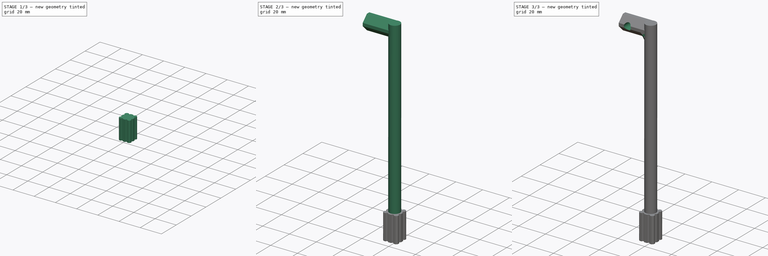
[diagram: build sequence overview — one tinted view per stage of 3, left to right]
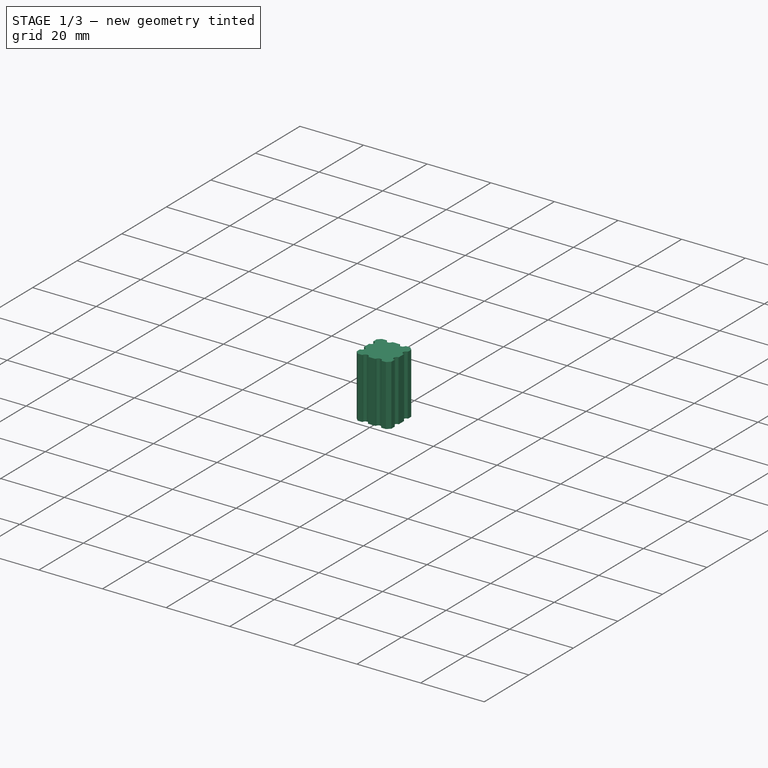
[diagram: stage 1 of 3 — iso view after this stage's code; geometry added in this stage tinted green]
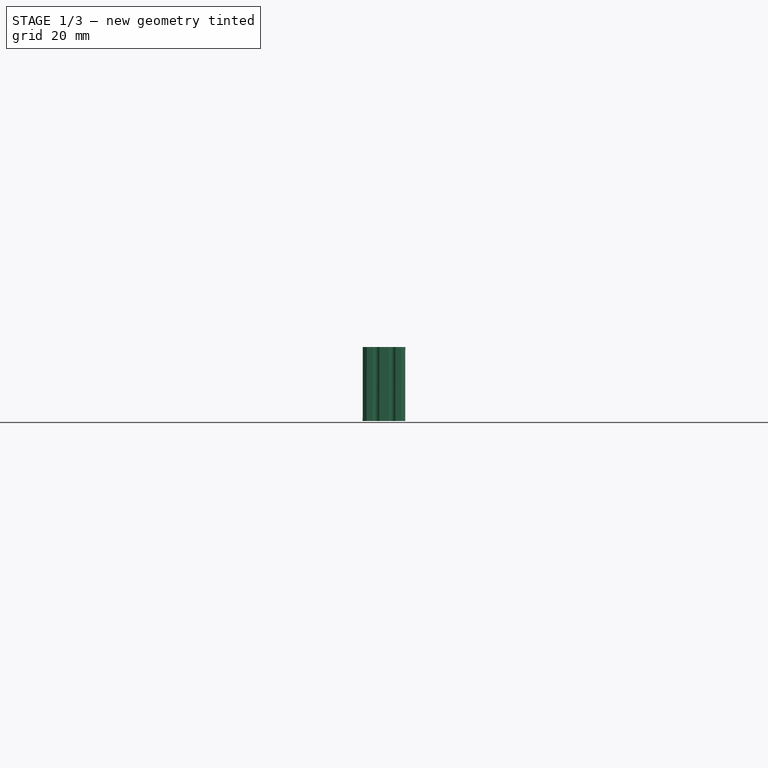
[diagram: stage 1 of 3 — front view after this stage's code; geometry added in this stage tinted green]
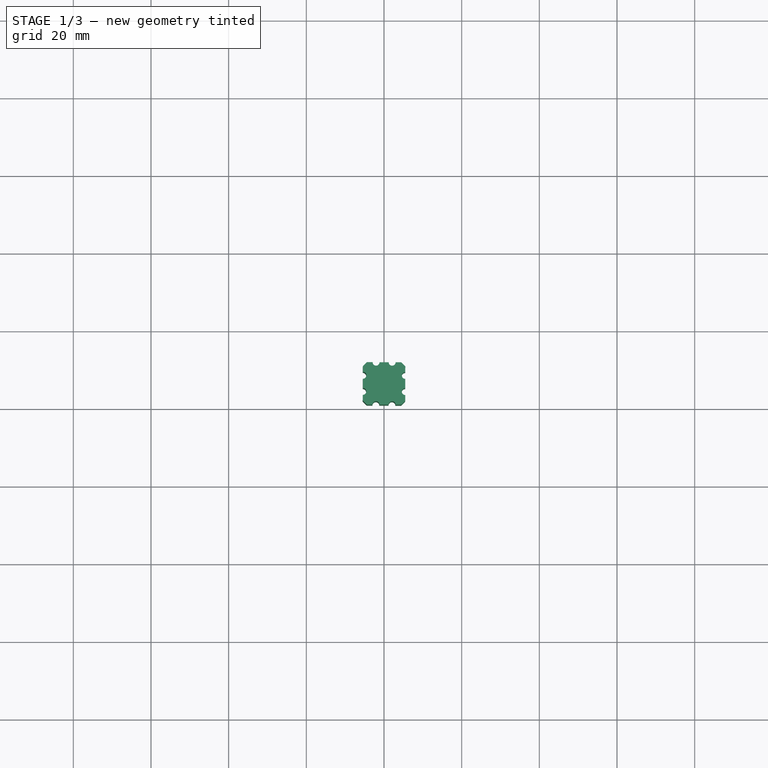
[diagram: stage 1 of 3 — top view after this stage's code; geometry added in this stage tinted green]
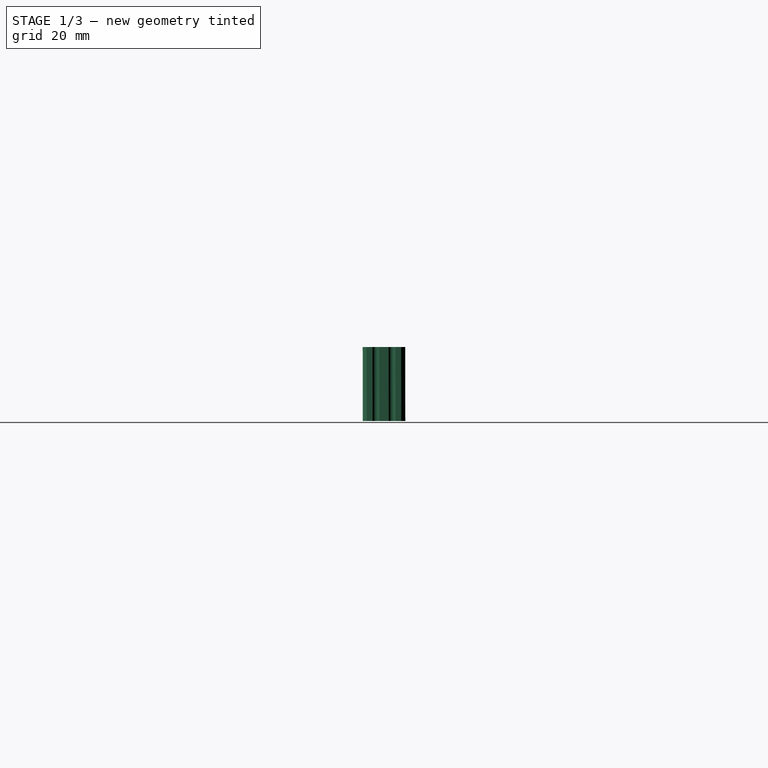
[diagram: stage 1 of 3 — right view after this stage's code; geometry added in this stage tinted green]
FCSTD DOCUMENT  (FreeCAD 0.17R13522 (Git))
Label: Stereotax full mount
License: All rights reserved
LicenseURL: http://en.wikipedia.org/wiki/All_rights_reserved
objects: Drawing::FeatureViewPython×16, Sketcher::SketchObject×9, Drawing::FeatureViewPart×5, PartDesign::Pad×3, PartDesign::Chamfer×3, PartDesign::Pocket×2, Part::Feature×1, Spreadsheet::Sheet×1, PartDesign::Body×1, Drawing::FeaturePage×1
note: 24 computed .brp shape members not serialized (recipe doc carries the construction recipe); baked Part::Feature solids carry a one-line shape summary decoded from their .brp

FEATURE [Sketcher::SketchObject] Sketch031  label="Attachment cube main body"
  MapMode = 5
  Placement = pos=(0,0,0) rot=(0.579113,0.576467,0.576467;2.0944rad)
  expr: Constraints[20] = ss.cubeWidth
  expr: Constraints[43] = ss.offAxis
  expr: Constraints[34] = 0.5" + 0.085000000000000006"
  expr: Constraints[35] = (0.42999999999999999" - 0.10000000000000001" * 2) / 3
  sketch-geometry (16):
    g0: LineSegment [constr] StartX=-14.5449 StartY=18.669 StartZ=0 EndX=-14.5449 EndY=28.575 EndZ=0
    g1: LineSegment [constr] StartX=-14.5449 StartY=28.575 StartZ=0 EndX=-17.0849 EndY=28.575 EndZ=0
    g2: LineSegment [constr] StartX=-17.0849 StartY=28.575 StartZ=0 EndX=-17.0849 EndY=18.669 EndZ=0
    g3: ArcOfCircle [constr] CenterX=-13.2749 CenterY=18.669 CenterZ=0 NormalX=0 NormalY=0 NormalZ=1 AngleXU=0 Radius=1.27 StartAngle=3.14159 EndAngle=4.71239
    g4: ArcOfCircle [constr] CenterX=-13.2749 CenterY=18.669 CenterZ=0 NormalX=0 NormalY=0 NormalZ=1 AngleXU=0 Radius=3.81 StartAngle=3.14159 EndAngle=4.71239
    g5: LineSegment [constr] StartX=-13.2749 StartY=14.859 StartZ=0 EndX=-10.0576 EndY=14.859 EndZ=0
    g6: LineSegment [constr] StartX=-13.2749 StartY=17.399 StartZ=0 EndX=-12.5976 EndY=17.399 EndZ=0
    g7: LineSegment StartX=-19.0322 StartY=37.719 StartZ=0 EndX=-8.11022 EndY=37.719 EndZ=0
    g8: LineSegment StartX=-8.11022 StartY=37.719 StartZ=0 EndX=-8.11022 EndY=18.669 EndZ=0
    g9: LineSegment StartX=-8.11022 StartY=18.669 StartZ=0 EndX=-19.0322 EndY=18.669 EndZ=0
    g10: LineSegment StartX=-19.0322 StartY=18.669 StartZ=0 EndX=-19.0322 EndY=37.719 EndZ=0
    g11: LineSegment [constr] StartX=-11.3276 StartY=28.575 StartZ=0 EndX=-11.3276 EndY=2.159 EndZ=0
    g12: LineSegment [constr] StartX=-10.0576 StartY=14.859 StartZ=0 EndX=-10.0576 EndY=28.575 EndZ=0
    g13: LineSegment [constr] StartX=-10.0576 StartY=28.575 StartZ=0 EndX=-12.5976 EndY=28.575 EndZ=0
    g14: LineSegment [constr] StartX=-12.5976 StartY=28.575 StartZ=0 EndX=-12.5976 EndY=17.399 EndZ=0
    g15: LineSegment [constr] StartX=-13.5712 StartY=37.719 StartZ=0 EndX=-13.5712 EndY=18.669 EndZ=0
  constraints (44):
    c: Coincident(g0,g1)
    c: Coincident(g1,g2)
    c: Vertical(g2)
    c: Vertical(g0)
    c: Horizontal(g1)
    c: Distance(g1) = 2.54
    c: Coincident(g3,g4)
    c: Horizontal(g5)
    c: Horizontal(g6)
    c: Tangent(g2,g4) = -1.5708
    c: Tangent(g3,g6) = -1.5708
    c: Tangent(g0,g3) = 1.5708
    c: Coincident(g7,g8)
    c: Coincident(g8,g9)
    c: Coincident(g9,g10)
    c: Coincident(g10,g7)
    c: Horizontal(g7)
    c: Horizontal(g9)
    c: Vertical(g8)
    c: Vertical(g10)
    c: Distance(g7) = 10.922
    c: Tangent(g4,g5) = -1.5708
    c: DistanceY(g1) = 28.575
    c: Vertical(g11)
    c: DistanceY(g11) = 28.575
    c: DistanceY(g11) = 2.159
    c: Coincident(g12,g13)
    c: Coincident(g13,g14)
    c: Coincident(g6,g14)
    c: Vertical(g12)
    c: Vertical(g14)
    c: Coincident(g5,g12)
    c: Equal(g13,g1)
    c: Symmetric(g13,g12,g11)
    c: DistanceY(g5) = 14.859
    c: DistanceX(g0,g13) = 1.94733
    c: Radius(g4) = 3.81
    c: Distance(g10) = 19.05
    c: DistanceY(g2,g9) = 0
    c: PointOnObject(g15,g7)
    c: PointOnObject(g15,g9)
    c: Symmetric(g7,g7,g15)
    c: Symmetric(g1,g12,g15)
    c: DistanceX(g15) = -13.5712
FEATURE [PartDesign::Pad] Pad003
  Length = 10.922
  Length2 = 100.076
  Midplane = true
  Placement = pos=(0,0,0) rot=(0.579113,0.576467,0.576467;2.0944rad)
  Profile = -> Sketch031
  Type = 0
  expr: Length = ss.cubeWidth
FEATURE [Sketcher::SketchObject] Sketch032  label="Cactus attachment post slots"
  MapMode = 5
  Placement = pos=(5.46097,-0.0166848,-0.00834878) rot=(0.579113,0.576467,0.576467;2.0944rad)
  Support = -> [Pad003]
  expr: Constraints[23] = -0.44600000000000001"
  expr: Constraints[35] = 0.5" + 0.085000000000000006"
  expr: Constraints[36] = (0.42999999999999999" - 0.10000000000000001" * 2) / 3
  expr: Constraints[38] = (0.42999999999999999" - 0.10000000000000001" * 2) / 3
  sketch-geometry (15):
    g0: LineSegment StartX=-14.5457 StartY=18.669 StartZ=0 EndX=-14.5457 EndY=38.1 EndZ=0
    g1: LineSegment StartX=-14.5457 StartY=38.1 StartZ=0 EndX=-17.0857 EndY=38.1 EndZ=0
    g2: LineSegment StartX=-17.0857 StartY=38.1 StartZ=0 EndX=-17.0857 EndY=18.669 EndZ=0
    g3: ArcOfCircle CenterX=-13.2757 CenterY=18.669 CenterZ=0 NormalX=0 NormalY=0 NormalZ=1 AngleXU=0 Radius=1.27 StartAngle=3.14159 EndAngle=4.71239
    g4: ArcOfCircle CenterX=-13.2757 CenterY=18.669 CenterZ=0 NormalX=0 NormalY=0 NormalZ=1 AngleXU=0 Radius=3.81 StartAngle=3.14159 EndAngle=4.71239
    g5: LineSegment StartX=-13.2757 StartY=14.859 StartZ=0 EndX=-10.0584 EndY=14.859 EndZ=0
    g6: LineSegment StartX=-13.2757 StartY=17.399 StartZ=0 EndX=-12.5984 EndY=17.399 EndZ=0
    g7: LineSegment [constr] StartX=-19.0331 StartY=37.719 StartZ=0 EndX=-8.11107 EndY=37.719 EndZ=0
    g8: LineSegment [constr] StartX=-8.11107 StartY=37.719 StartZ=0 EndX=-8.11107 EndY=18.669 EndZ=0
    g9: LineSegment [constr] StartX=-8.11107 StartY=18.669 StartZ=0 EndX=-19.0331 EndY=18.669 EndZ=0
    g10: LineSegment [constr] StartX=-19.0331 StartY=18.669 StartZ=0 EndX=-19.0331 EndY=37.719 EndZ=0
    g11: LineSegment [constr] StartX=-11.3284 StartY=28.575 StartZ=0 EndX=-11.3284 EndY=2.159 EndZ=0
    g12: LineSegment StartX=-10.0584 StartY=14.859 StartZ=0 EndX=-10.0584 EndY=38.1 EndZ=0
    g13: LineSegment StartX=-10.0584 StartY=38.1 StartZ=0 EndX=-12.5984 EndY=38.1 EndZ=0
    g14: LineSegment StartX=-12.5984 StartY=38.1 StartZ=0 EndX=-12.5984 EndY=17.399 EndZ=0
  constraints (42):
    c: Coincident(g0,g1)
    c: Coincident(g1,g2)
    c: Vertical(g2)
    c: Vertical(g0)
    c: Horizontal(g1)
    c: Distance(g1) = 2.54
    c: Coincident(g3,g4)
    c: Horizontal(g5)
    c: Horizontal(g6)
    c: Tangent(g2,g4) = -1.5708
    c: Tangent(g3,g6) = -1.5708
    c: Tangent(g0,g3) = 1.5708
    c: Coincident(g7,g8)
    c: Coincident(g8,g9)
    c: Coincident(g9,g10)
    c: Coincident(g10,g7)
    c: Horizontal(g7)
    c: Horizontal(g9)
    c: Vertical(g8)
    c: Vertical(g10)
    c: Distance(g7) = 10.922
    c: Tangent(g4,g5) = -1.5708
    c: Vertical(g11)
    c: DistanceX(g11) = -11.3284
    c: DistanceY(g11) = 28.575
    c: DistanceY(g11) = 2.159
    c: Coincident(g12,g13)
    c: Coincident(g13,g14)
    c: Coincident(g6,g14)
    c: Vertical(g12)
    c: Vertical(g14)
    c: Coincident(g5,g12)
    c: Equal(g13,g1)
    c: DistanceY(g13,g0) = 0
    c: Symmetric(g13,g12,g11)
    c: DistanceY(g5) = 14.859
    c: DistanceX(g0,g13) = 1.94733
    c: Radius(g4) = 3.81
    c: DistanceX(g12,g7) = 1.94733
    c: Distance(g10) = 19.05
    c: DistanceY(g2,g9) = 0
    c: DistanceY(g1) = 38.1
FEATURE [Sketcher::SketchObject] Sketch033  label="Stereotax mounting post hole"
  MapMode = 5
  Placement = pos=(0.0574889,-0.0576649,37.7189) rot=(0,0.001524,-0.999999;1.57385rad)
  expr: Constraints[2] = 0.222" / 2 + 0.0074999999999999997"
  expr: Constraints[1] = 0.53433299999999995"
  sketch-geometry (1):
    g0: Circle CenterX=13.5721 CenterY=0 CenterZ=0 NormalX=0 NormalY=0 NormalZ=1 AngleXU=0 Radius=3.0099
  constraints (3):
    c: DistanceY(g0) = 0
    c: DistanceX(g0) = 13.5721
    c: Radius(g0) = 3.0099
FEATURE [Sketcher::SketchObject] Sketch035  label="Attachment bolt shaft hole"
  MapMode = 5
  Placement = pos=(0.0574889,-0.0576649,37.7189) rot=(0,0.001524,-0.999999;1.57385rad)
  expr: Constraints[2] = 0.12" / 2 + 0.0050000000000000001"
  expr: Constraints[1] = 0.53433299999999995"
  sketch-geometry (1):
    g0: Circle CenterX=13.5721 CenterY=0 CenterZ=0 NormalX=0 NormalY=0 NormalZ=1 AngleXU=0 Radius=1.651
  constraints (3):
    c: DistanceY(g0) = 0
    c: DistanceX(g0) = 13.5721
    c: Radius(g0) = 1.651
FEATURE [Sketcher::SketchObject] Sketch036  label="Attachment bolt head hole"
  MapMode = 5
  Placement = pos=(0.0284541,-0.0285412,18.669) rot=(0.708187,0.706025,0;3.14375rad)
  expr: Constraints[2] = 0.185" / 2 + 0.014999999999999999"
  expr: Constraints[1] = -0.53433299999999995"
  sketch-geometry (1):
    g0: Circle CenterX=-13.5721 CenterY=0 CenterZ=0 NormalX=0 NormalY=0 NormalZ=1 AngleXU=0 Radius=2.7305
  constraints (3):
    c: DistanceY(g0) = 0
    c: DistanceX(g0) = -13.5721
    c: Radius(g0) = 2.7305
FEATURE [Sketcher::SketchObject] Sketch039  label="Cactus channels"
  MapMode = 5
  Placement = pos=(0.0284541,-0.0285412,18.669) rot=(0.708187,0.706025,0;3.14375rad)
  Support = -> [Pad003]
  expr: Constraints[24] = ss.offAxis
  expr: Constraints[23] = ss.offAxis - ss.cubeWidth / 2
  expr: Constraints[0] = 0.42999999999999999" / 2
  expr: Constraints[2] = 0.029999999999999999" + 0.0050000000000000001"
  expr: Constraints[1] = ss.cactusSeparation
  sketch-geometry (13):
    g0: Circle CenterX=-15.6456 CenterY=5.461 CenterZ=0 NormalX=0 NormalY=0 NormalZ=1 AngleXU=0 Radius=0.889
    g1: Circle CenterX=-11.4969 CenterY=5.461 CenterZ=0 NormalX=0 NormalY=0 NormalZ=1 AngleXU=0 Radius=0.889
    g2: Circle CenterX=-15.6456 CenterY=-5.461 CenterZ=0 NormalX=0 NormalY=0 NormalZ=1 AngleXU=0 Radius=0.889
    g3: Circle CenterX=-11.4969 CenterY=-5.461 CenterZ=0 NormalX=0 NormalY=0 NormalZ=1 AngleXU=0 Radius=0.889
    g4: Circle CenterX=-19.0322 CenterY=2.07433 CenterZ=0 NormalX=0 NormalY=0 NormalZ=1 AngleXU=0 Radius=0.889
    g5: Circle CenterX=-19.0322 CenterY=-2.07433 CenterZ=0 NormalX=0 NormalY=0 NormalZ=1 AngleXU=0 Radius=0.889
    g6: LineSegment [constr] StartX=-15.6456 StartY=5.461 StartZ=0 EndX=-11.4969 EndY=5.461 EndZ=0
    g7: LineSegment [constr] StartX=-15.6456 StartY=-5.461 StartZ=0 EndX=-11.4969 EndY=-5.461 EndZ=0
    g8: LineSegment [constr] StartX=-19.0322 StartY=2.07433 StartZ=0 EndX=-19.0322 EndY=-2.07433 EndZ=0
    g9: LineSegment [constr] StartX=-13.5712 StartY=5.461 StartZ=0 EndX=-13.5712 EndY=-5.461 EndZ=0
    g10: Circle CenterX=-8.11022 CenterY=2.07433 CenterZ=0 NormalX=0 NormalY=0 NormalZ=1 AngleXU=0 Radius=0.889
    g11: Circle CenterX=-8.11022 CenterY=-2.07433 CenterZ=0 NormalX=0 NormalY=0 NormalZ=1 AngleXU=0 Radius=0.889
    g12: LineSegment [constr] StartX=-8.11022 StartY=2.07433 StartZ=0 EndX=-8.11022 EndY=-2.07433 EndZ=0
  constraints (32):
    c: DistanceY(g0) = 5.461
    c: DistanceX(g0,g1) = 4.14867
    c: Radius(g0) = 0.889
    c: Equal(g0,g1)
    c: DistanceY(g2,g3) = 0
    c: Equal(g0,g2) = 0.889
    c: Equal(g2,g3)
    c: Symmetric(g2,g0,g-1)
    c: Equal(g0,g4) = 0.889
    c: Equal(g4,g5)
    c: Coincident(g0,g6)
    c: Coincident(g1,g6)
    c: Coincident(g2,g7)
    c: Coincident(g3,g7)
    c: Coincident(g5,g8)
    c: Coincident(g4,g8)
    c: Equal(g8,g6)
    c: Equal(g6,g7)
    c: PointOnObject(g9,g6)
    c: PointOnObject(g9,g7)
    c: Symmetric(g0,g1,g9)
    c: Equal(g8,g6)
    c: Symmetric(g4,g5,g-1)
    c: DistanceX(g5) = -19.0322
    c: DistanceX(g9) = -13.5712
    c: Equal(g10,g11)
    c: Coincident(g11,g12)
    c: Coincident(g10,g12)
    c: Equal(g8,g12)
    c: Symmetric(g10,g11,g-1)
    c: Symmetric(g10,g4,g9)
    c: Equal(g10,g4)
FEATURE [Part::Feature] Body002  label="Body001"
  Placement = pos=(5.461,0,0) rot=(0,0,1;0rad)
  shape: bbox 20.07 x 26.61 x 33.91 mm, 80 faces (baked)
FEATURE [PartDesign::Pocket] Pocket
  BaseFeature = -> Pad003
  Length = 5.00126
  Length2 = 99.9998
  Placement = pos=(0,0,0) rot=(0.579113,0.576467,0.576467;2.0944rad)
  Profile = -> Sketch039
  Type = 1
FEATURE [PartDesign::Chamfer] Chamfer
  Base = -> Pocket [Edge43,Edge33,Edge23,Edge52]
  BaseFeature = -> Pocket
  Placement = pos=(0,0,0) rot=(0.579113,0.576467,0.576467;2.0944rad)
  Size = 1.016
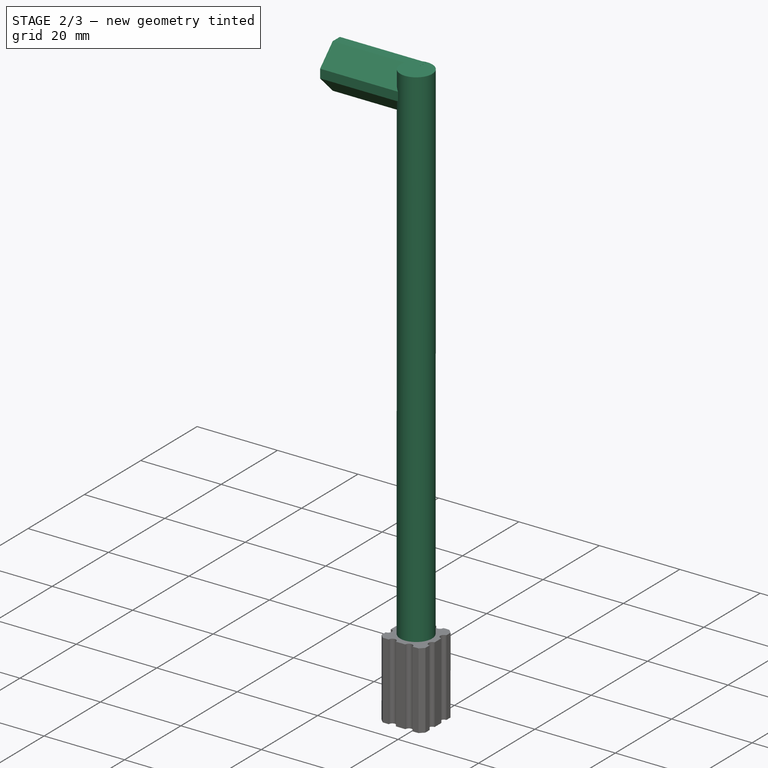
[diagram: stage 2 of 3 — iso view after this stage's code; geometry added in this stage tinted green]
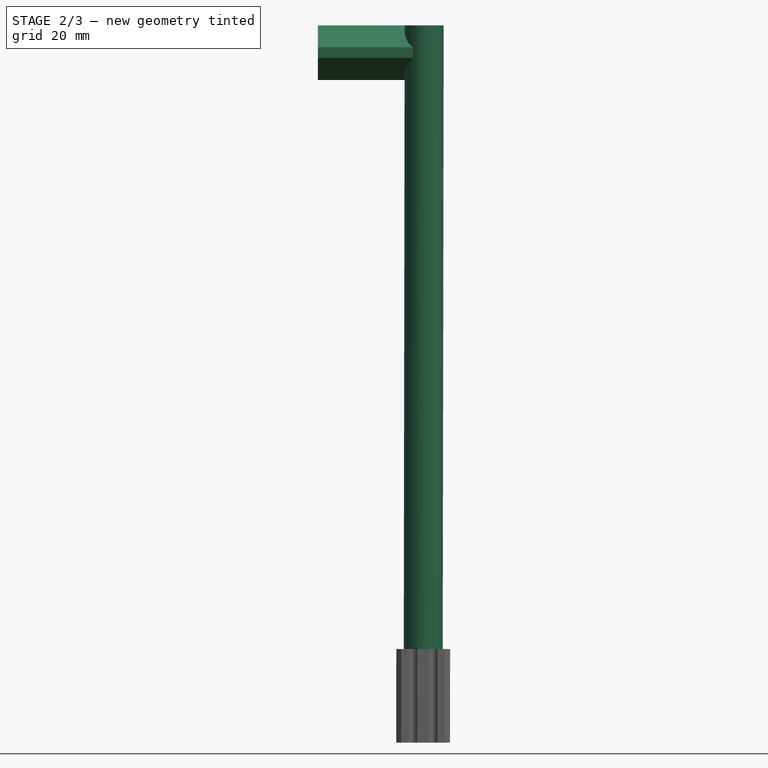
[diagram: stage 2 of 3 — front view after this stage's code; geometry added in this stage tinted green]
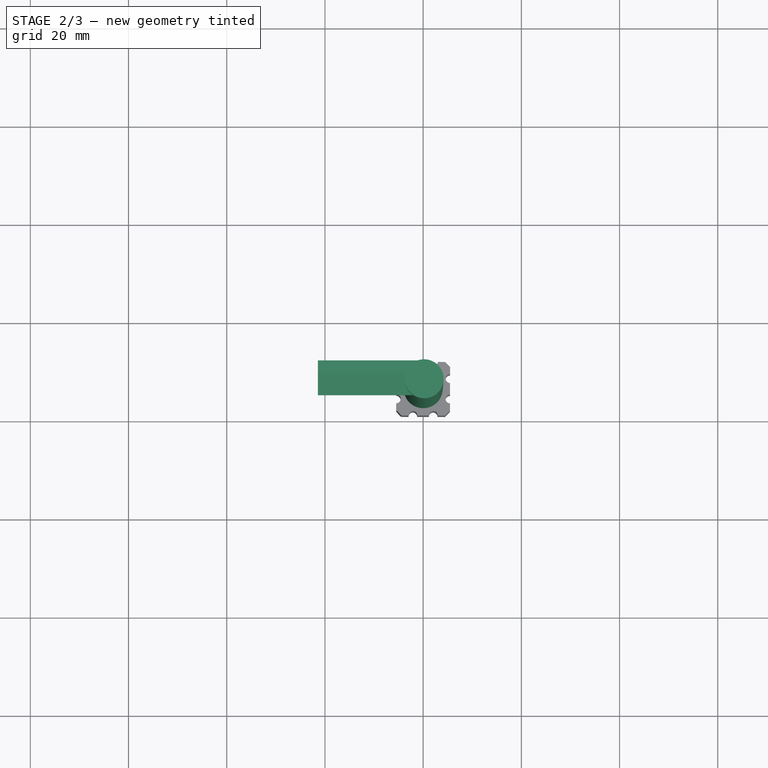
[diagram: stage 2 of 3 — top view after this stage's code; geometry added in this stage tinted green]
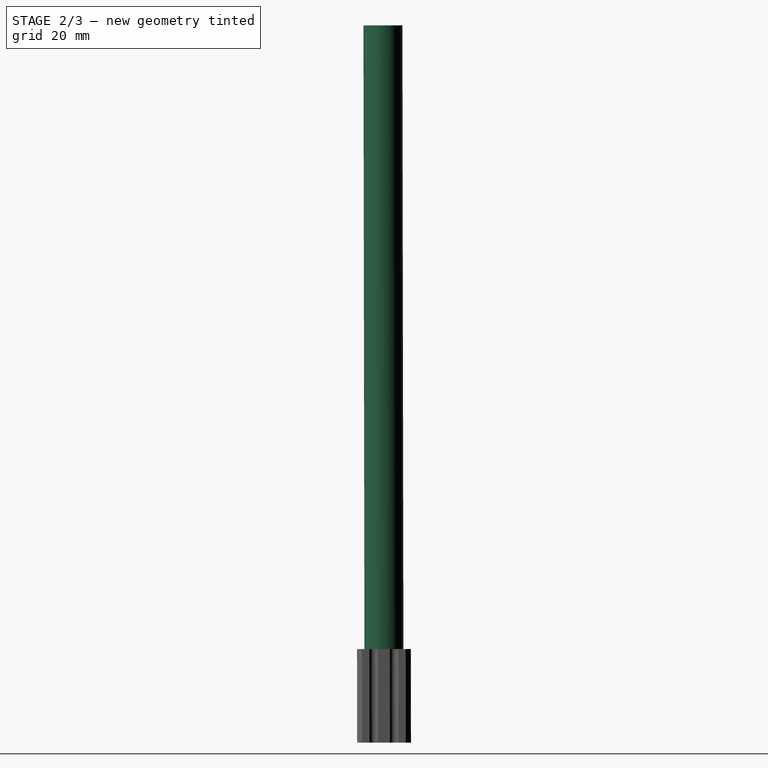
[diagram: stage 2 of 3 — right view after this stage's code; geometry added in this stage tinted green]
FEATURE [Sketcher::SketchObject] Sketch  label="Rod"
  MapMode = 5
  Placement = pos=(0.0574889,-0.0576649,37.7189) rot=(0,0.001524,-0.999999;1.57385rad)
  Support = -> [Chamfer]
  expr: Constraints[2] = 0.3125" / 2
  expr: Constraints[1] = -ss.offAxis
  sketch-geometry (1):
    g0: Circle CenterX=13.5712 CenterY=0 CenterZ=0 NormalX=0 NormalY=0 NormalZ=1 AngleXU=0 Radius=3.96875
  constraints (3):
    c: DistanceY(g0) = 0
    c: DistanceX(g0) = 13.5712
    c: Radius(g0) = 3.96875
FEATURE [Spreadsheet::Sheet] Spreadsheet  label="ss"
  cells = A1=Off-axis; B1(offAxis)==-0.5343"; A2=Cube top face offset; B2(topOffset)==1.4850000000000001"; A3=Rod length; B3(rodLength)==5"; A4=V-mount height; B4(vHeight)==0.438"; A5=V-mount width; B5(vWidth)==0.27600000000000002"; A6=V-mount x-offset; B6(vxOffset)==0.10000000000000001"; A7=Cactus separation; B7(cactusSeparation)==0.42999999999999999" / 3 + 0.059999999999999998" / 3; A8=Cube width; B8(cubeWidth)==0.42999999999999999"
FEATURE [PartDesign::Pad] Pad
  BaseFeature = -> Chamfer
  Length = 127
  Length2 = 99.9998
  Placement = pos=(0,0,0) rot=(0.579113,0.576467,0.576467;2.0944rad)
  Profile = -> Sketch
  Type = 0
  expr: Length = ss.rodLength
FEATURE [Sketcher::SketchObject] Sketch040  label="V-mount fitting"
  MapMode = 5
  Placement = pos=(0,0,0) rot=(0.57735,0.57735,0.57735;2.0944rad)
  Support = -> [YZ_Plane001]
  expr: Constraints[16] = ss.vWidth
  expr: Constraints[4] = ss.vHeight
  expr: Constraints[21] = ss.offAxis
  expr: Constraints[22] = ss.vxOffset
  expr: Constraints[17] = ss.rodLength + ss.topOffset
  sketch-geometry (8):
    g0: LineSegment StartX=-12.606 StartY=164.719 StartZ=0 EndX=-17.0764 EndY=160.249 EndZ=0
    g1: LineSegment StartX=-17.0764 StartY=160.249 StartZ=0 EndX=-17.0764 EndY=158.064 EndZ=0
    g2: LineSegment StartX=-17.0764 StartY=158.064 StartZ=0 EndX=-12.606 EndY=153.594 EndZ=0
    g3: LineSegment StartX=-12.606 StartY=164.719 StartZ=0 EndX=-10.066 EndY=164.719 EndZ=0
    g4: LineSegment StartX=-10.066 StartY=164.719 StartZ=0 EndX=-10.066 EndY=153.594 EndZ=0
    g5: LineSegment StartX=-10.066 StartY=153.594 StartZ=0 EndX=-12.606 EndY=153.594 EndZ=0
    g6: LineSegment [constr] StartX=-17.0764 StartY=159.156 StartZ=0 EndX=-10.066 EndY=159.156 EndZ=0
    g7: LineSegment [constr] StartX=-13.5712 StartY=153.594 StartZ=0 EndX=-13.5712 EndY=164.719 EndZ=0
  constraints (23):
    c: Coincident(g0,g1)
    c: Coincident(g1,g2)
    c: Perpendicular(g2,g0)
    c: Vertical(g1)
    c: DistanceY(g2,g0) = 11.1252
    c: Coincident(g3,g4)
    c: Coincident(g4,g5)
    c: Coincident(g0,g3)
    c: Coincident(g2,g5)
    c: Horizontal(g5)
    c: Horizontal(g3)
    c: Vertical(g4)
    c: PointOnObject(g6,g4)
    c: PointOnObject(g6,g1)
    c: Symmetric(g0,g1,g6)
    c: Symmetric(g0,g2,g6)
    c: DistanceX(g0,g3) = 7.0104
    c: DistanceY(g3) = 164.719
    c: Symmetric(g7,g7,g6)
    c: PointOnObject(g7,g3)
    c: Symmetric(g6,g6,g7)
    c: DistanceX(g7) = -13.5712
    c: DistanceX(g3,g3) = 2.54
FEATURE [PartDesign::Pad] Pad004
  BaseFeature = -> Pad
  Length = 21.4312
  Length2 = 99.9998
  Placement = pos=(0,0,0) rot=(0.579113,0.576467,0.576467;2.0944rad)
  Profile = -> Sketch040
  Reversed = true
  Type = 0
  expr: Length = 1" - 0.3125" / 2
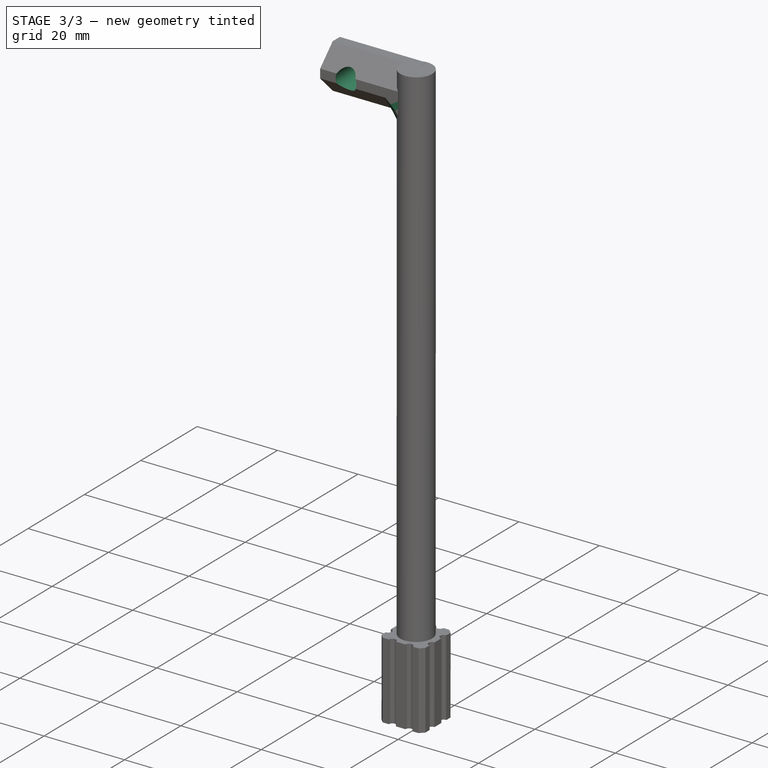
[diagram: stage 3 of 3 — iso view after this stage's code; geometry added in this stage tinted green]
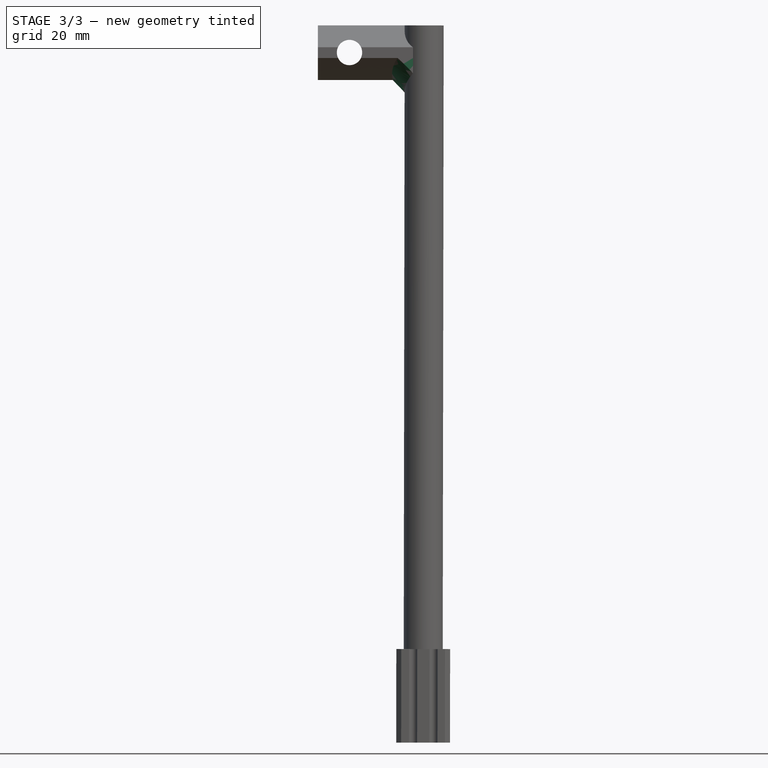
[diagram: stage 3 of 3 — front view after this stage's code; geometry added in this stage tinted green]
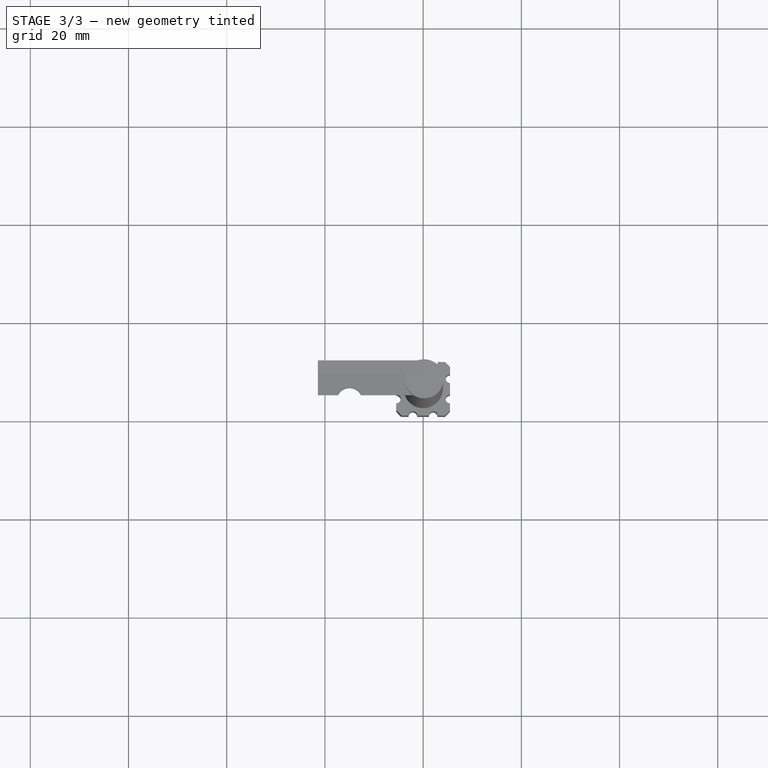
[diagram: stage 3 of 3 — top view after this stage's code; geometry added in this stage tinted green]
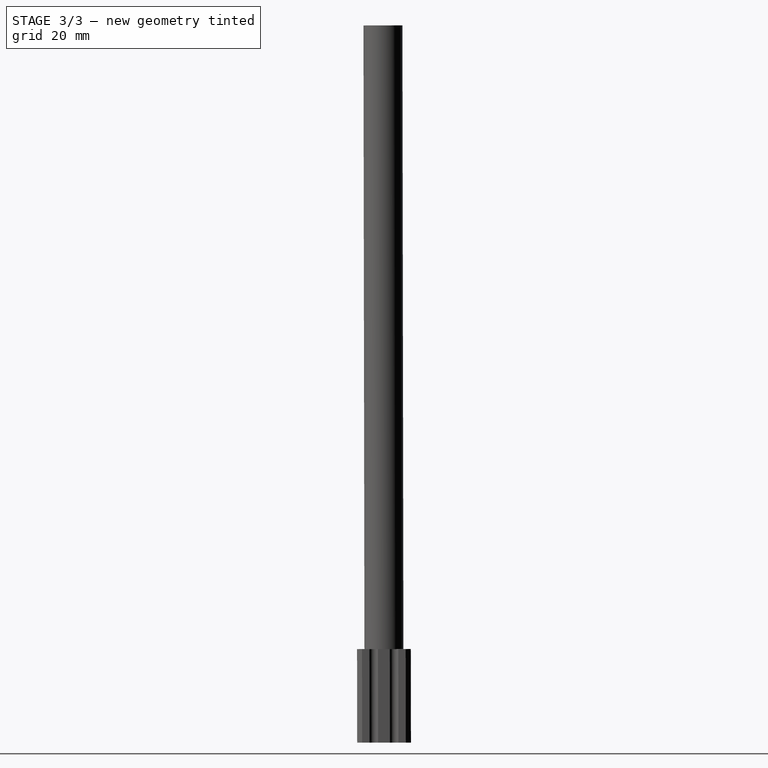
[diagram: stage 3 of 3 — right view after this stage's code; geometry added in this stage tinted green]
FEATURE [Sketcher::SketchObject] Sketch041  label="Mounting bolt hole"
  MapMode = 5
  Placement = pos=(-1e-12,-10.066,1e-12) rot=(-0.577937,-0.577057,-0.577057;2.09352rad)
  Support = -> [Pad004]
  expr: Constraints[2] = 13" / 64 / 2
  expr: Constraints[0] = ss.rodLength + ss.topOffset - ss.vHeight / 2
  sketch-geometry (1):
    g0: Circle CenterX=159.156 CenterY=-15.24 CenterZ=0 NormalX=0 NormalY=0 NormalZ=1 AngleXU=0 Radius=2.57969
  constraints (3):
    c: DistanceX(g0) = 159.156
    c: DistanceY(g0) = -15.24
    c: Radius(g0) = 2.57969
FEATURE [PartDesign::Pocket] Pocket001
  BaseFeature = -> Pad004
  Length = 5.00126
  Length2 = 99.9998
  Placement = pos=(0,0,0) rot=(0.579113,0.576467,0.576467;2.0944rad)
  Profile = -> Sketch041
  Type = 1
FEATURE [PartDesign::Chamfer] Chamfer001
  Base = -> Pocket001 [Edge85]
  BaseFeature = -> Pocket001
  Placement = pos=(0,0,0) rot=(0.579113,0.576467,0.576467;2.0944rad)
  Size = 2.54
FEATURE [PartDesign::Chamfer] Chamfer002
  Base = -> Chamfer001 [Edge7]
  BaseFeature = -> Chamfer001
  Placement = pos=(0,0,0) rot=(0.579113,0.576467,0.576467;2.0944rad)
  Size = 2.54
FEATURE [PartDesign::Body] Body001  label="Stereotax full mount"
  Group = -> [Sketch031,Pad003,Sketch032,Sketch033,Sketch035,Sketch036,Sketch039,Pocket,Chamfer,Sketch,Pad,Sketch040,Pad004,Sketch041,Pocket001,Chamfer001,Chamfer002]
  Origin = -> Origin001
  Tip = -> Chamfer002
FEATURE [Drawing::FeatureViewPart] Ortho  label="Ortho_0_0"
  Direction = (1,0,0)
  HiddenWidth = 0.15
  LineWidth = 0.35
  Rotation = -90
  ShowHiddenLines = false
  ShowSmoothLines = false
  Source = -> Body001
  Tolerance = 0.05
  ViewResult = <blob: 4861 chars omitted>
  Visible = false
  X = 160
  Y = 200
FEATURE [Drawing::FeatureViewPart] Ortho001  label="Ortho_1_0"
  Direction = (0,1,0)
  HiddenWidth = 0.15
  LineWidth = 0.35
  Rotation = -90
  ShowHiddenLines = false
  ShowSmoothLines = false
  Source = -> Body001
  Tolerance = 0.05
  ViewResult = <blob: 5683 chars omitted>
  Visible = false
  X = 240
  Y = 200
FEATURE [Drawing::FeatureViewPart] Ortho003  label="Ortho_0_-1"
  Direction = (0,0,-1)
  HiddenWidth = 0.15
  LineWidth = 0.35
  Rotation = 90
  ShowHiddenLines = false
  ShowSmoothLines = false
  Source = -> Body001
  Tolerance = 0.05
  ViewResult = <blob: 5806 chars omitted>
  Visible = false
  X = 160
  Y = 225
FEATURE [Drawing::FeatureViewPart] Ortho004  label="Ortho_2_0"
  Direction = (-1,0,0)
  HiddenWidth = 0.15
  LineWidth = 0.35
  Rotation = 90
  ShowHiddenLines = false
  ShowSmoothLines = false
  Source = -> Body001
  Tolerance = 0.05
  ViewResult = <blob: 6173 chars omitted>
  Visible = false
  X = 320
  Y = 200
FEATURE [Drawing::FeatureViewPart] Ortho005  label="Ortho_-1_1"
  Direction = (0.57735,-0.57735,0.57735)
  HiddenWidth = 0.15
  LineWidth = 0.35
  Rotation = 60
  ShowHiddenLines = false
  ShowSmoothLines = false
  Source = -> Body001
  Tolerance = 0.05
  ViewResult = <blob: 7225 chars omitted>
  Visible = false
  X = 75.5635
  Y = 175
FEATURE [Drawing::FeatureViewPython] dim001  # drawing view (typed FeaturePython)
  Rotation = 0
  ViewResult = <g> \n  <line x1="140.208300" y1="35.308000" x2="127.030278" y2="35.308000" style="stroke:rgb(0,0,255);stroke-width:0.50" />\n<line x1="140.402400" y1="162.307800" x2="127.030278" y2="162.307800" style="stroke:rgb(0,0,255);stroke-width:0.50" />\n<line x1="128.030278" y1="35.308000" x2="128.030278" y2="162.307800" style="stroke:rgb(0,0,255);stroke-width:0.50" /> \n  <polygon points="128.030278,162.307800 129.030278,159.307800 128.030278,158.307800 127.030278,159.307800" style="fill:rgb(0,0,255);stroke:rgb(0,0,255);stroke-width:0" /><polygon points="128.030278,35.308000 127.030278,38.308000 128.030278,39.308000 129.030278,38.308000" style="fill:rgb(0,0,255);stroke:rgb(0,0,255);stroke-width:0" /> \n  <text x="125.120499" y="99.461538" font-family="Verdana" font-size="5" fill="rgb(0,0,255)" text-anchor="inherit" transform="rotate(-90.000000 125.120499,99.461538)" >5</text> </g>
  Visible = false
  X = 0
  Y = 0
  arrowL1 = 3
  arrowL2 = 1
  arrowW = 2
  arrow_scheme = 0
  autoPlaceOffset = 2
  autoPlaceText = false
  click1_x = 128.03
  click1_y = 98.4034
  click2_x = 125.12
  click2_y = 99.4615
  comma_decimal_place = false
  dimension_line_overshoot = 1
  gap_datum_points = 2
  halfDimension_linear = false
  lineColor = rgb(0,0,255)
  strokeWidth = 0.5
  textFormat_linear = %(value)3.3f
  textRenderer_color = rgb(0,0,255)
  textRenderer_family = Verdana
  textRenderer_size = 5
  unit_custom_scale = 1
  unit_scheme = 2
FEATURE [Drawing::FeatureViewPython] dim002  # drawing view (typed FeaturePython)
  Rotation = 0
  ViewResult = <g> \n  <line x1="138.925800" y1="181.366800" x2="116.449263" y2="181.366800" style="stroke:rgb(0,0,255);stroke-width:0.50" />\n<line x1="140.208300" y1="35.308000" x2="116.449263" y2="35.308000" style="stroke:rgb(0,0,255);stroke-width:0.50" />\n<line x1="117.449263" y1="181.366800" x2="117.449263" y2="35.308000" style="stroke:rgb(0,0,255);stroke-width:0.50" /> \n  <polygon points="117.449263,35.308000 116.449263,38.308000 117.449263,39.308000 118.449263,38.308000" style="fill:rgb(0,0,255);stroke:rgb(0,0,255);stroke-width:0" /><polygon points="117.449263,181.366800 118.449263,178.366800 117.449263,177.366800 116.449263,178.366800" style="fill:rgb(0,0,255);stroke:rgb(0,0,255);stroke-width:0" /> \n  <text x="113.481383" y="115.597586" font-family="Verdana" font-size="5" fill="rgb(0,0,255)" text-anchor="inherit" transform="rotate(-90.000000 113.481383,115.597586)" >5.75</text> </g>
  Visible = false
  X = 0
  Y = 0
  arrowL1 = 3
  arrowL2 = 1
  arrowW = 2
  arrow_scheme = 0
  autoPlaceOffset = 2
  autoPlaceText = false
  click1_x = 117.449
  click1_y = 104.752
  click2_x = 113.481
  click2_y = 115.598
  comma_decimal_place = false
  dimension_line_overshoot = 1
  gap_datum_points = 2
  halfDimension_linear = false
  lineColor = rgb(0,0,255)
  strokeWidth = 0.5
  textFormat_linear = %(value)3.3f
  textRenderer_color = rgb(0,0,255)
  textRenderer_family = Verdana
  textRenderer_size = 5
  unit_custom_scale = 1
  unit_scheme = 2
FEATURE [Drawing::FeatureViewPython] dim003  # drawing view (typed FeaturePython)
  Rotation = 0
  ViewResult = <g> \n  <line x1="140.925800" y1="183.366800" x2="140.925800" y2="200.277977" style="stroke:rgb(0,0,255);stroke-width:0.50" />\n<line x1="151.847710" y1="183.350200" x2="151.847710" y2="200.277977" style="stroke:rgb(0,0,255);stroke-width:0.50" />\n<line x1="140.925800" y1="199.277977" x2="151.847710" y2="199.277977" style="stroke:rgb(0,0,255);stroke-width:0.50" /> \n  <polygon points="151.847710,199.277977 148.847710,198.277977 147.847710,199.277977 148.847710,200.277977" style="fill:rgb(0,0,255);stroke:rgb(0,0,255);stroke-width:0" /><polygon points="140.925800,199.277977 143.925800,200.277977 144.925800,199.277977 143.925800,198.277977" style="fill:rgb(0,0,255);stroke:rgb(0,0,255);stroke-width:0" /> \n  <text x="141.001630" y="205.842815" font-family="Verdana" font-size="5" fill="rgb(0,0,255)" text-anchor="inherit" transform="rotate(0.000000 141.001630,205.842815)" >0.43</text> </g>
  Visible = false
  X = 0
  Y = 0
  arrowL1 = 3
  arrowL2 = 1
  arrowW = 2
  arrow_scheme = 0
  autoPlaceOffset = 2
  autoPlaceText = false
  click1_x = 147.723
  click1_y = 199.278
  click2_x = 141.002
  click2_y = 205.843
  comma_decimal_place = false
  dimension_line_overshoot = 1
  gap_datum_points = 2
  halfDimension_linear = false
  lineColor = rgb(0,0,255)
  strokeWidth = 0.5
  textFormat_linear = %(value)3.3f
  textRenderer_color = rgb(0,0,255)
  textRenderer_family = Verdana
  textRenderer_size = 5
  unit_custom_scale = 1
  unit_scheme = 2
FEATURE [Drawing::FeatureViewPython] centerLines001  # drawing view (typed FeaturePython)
  Rotation = 0
  ViewResult = <g transform="scale(1.000000,1.000000)" stroke="rgb(0,0,255)"  stroke-width="0.300000" > <path d="M 140.939350,225.029740 L 138.939350,225.029740 "/>\n<path d="M 140.939350,225.029740 L 142.939350,225.029740 M 144.939350,225.029740 L 150.939350,225.029740 M 152.939350,225.029740 L 154.481088,225.029740 "/> </g> 
  Visible = false
  X = 0
  Y = 0
  centerLine_color = rgb(0,0,255)
  centerLine_len_dash = 6
  centerLine_len_dot = 2
  centerLine_len_gap = 2
  centerLine_width = 0.3
  click1_x = 137.69
  click1_y = 224.943
  click2_x = 154.481
  click2_y = 224.984
FEATURE [Drawing::FeatureViewPython] centerLines002  # drawing view (typed FeaturePython)
  Rotation = 0
  ViewResult = <g transform="scale(1.000000,1.000000)" stroke="rgb(0,0,255)"  stroke-width="0.300000" > <path d="M 144.388000,239.997400 L 142.388000,239.997400 M 140.388000,239.997400 L 136.355417,239.997400 "/>\n<path d="M 144.388000,239.997400 L 146.388000,239.997400 M 148.388000,239.997400 L 154.388000,239.997400 M 156.388000,239.997400 L 158.388000,239.997400 "/> </g> 
  Visible = false
  X = 0
  Y = 0
  centerLine_color = rgb(0,0,255)
  centerLine_len_dash = 6
  centerLine_len_dot = 2
  centerLine_len_gap = 2
  centerLine_width = 0.3
  click1_x = 136.355
  click1_y = 240.171
  click2_x = 159.319
  click2_y = 240.028
FEATURE [Drawing::FeatureViewPython] dim006  # drawing view (typed FeaturePython)
  Rotation = 0
  ViewResult = <g> \n  <line x1="136.939350" y1="225.029740" x2="134.394164" y2="225.029740" style="stroke:rgb(0,0,255);stroke-width:0.50" />\n<line x1="134.355417" y1="239.997400" x2="134.394164" y2="239.997400" style="stroke:rgb(0,0,255);stroke-width:0.50" />\n<line x1="135.394164" y1="225.029740" x2="135.394164" y2="239.997400" style="stroke:rgb(0,0,255);stroke-width:0.50" /> \n  <polygon points="135.394164,239.997400 136.394164,236.997400 135.394164,235.997400 134.394164,236.997400" style="fill:rgb(0,0,255);stroke:rgb(0,0,255);stroke-width:0" /><polygon points="135.394164,225.029740 134.394164,228.029740 135.394164,229.029740 136.394164,228.029740" style="fill:rgb(0,0,255);stroke:rgb(0,0,255);stroke-width:0" /> \n  <text x="133.112567" y="239.780535" font-family="Verdana" font-size="5" fill="rgb(0,0,255)" text-anchor="inherit" transform="rotate(-90.000000 133.112567,239.780535)" >0.589</text> </g>
  Visible = false
  X = 0
  Y = 0
  arrowL1 = 3
  arrowL2 = 1
  arrowW = 2
  arrow_scheme = 0
  autoPlaceOffset = 2
  autoPlaceText = false
  click1_x = 135.394
  click1_y = 233.015
  click2_x = 133.113
  click2_y = 239.781
  comma_decimal_place = false
  dimension_line_overshoot = 1
  gap_datum_points = 2
  halfDimension_linear = false
  lineColor = rgb(0,0,255)
  strokeWidth = 0.5
  textFormat_linear = %(value)3.3f
  textRenderer_color = rgb(0,0,255)
  textRenderer_family = Verdana
  textRenderer_size = 5
  unit_custom_scale = 1
  unit_scheme = 2
FEATURE [Drawing::FeatureViewPython] dim004  # drawing view (typed FeaturePython)
  Rotation = 0
  ViewResult = <g> \n  <line x1="144.309305" y1="217.558361" x2="144.309305" y2="213.724179" style="stroke:rgb(0,0,255);stroke-width:0.50" />\n<line x1="148.457905" y1="217.545681" x2="148.457905" y2="213.724179" style="stroke:rgb(0,0,255);stroke-width:0.50" />\n<line x1="144.309305" y1="214.724179" x2="148.457905" y2="214.724179" style="stroke:rgb(0,0,255);stroke-width:0.50" /> \n  <polygon points="148.457905,214.724179 151.457905,215.724179 152.457905,214.724179 151.457905,213.724179" style="fill:rgb(0,0,255);stroke:rgb(0,0,255);stroke-width:0" /><polygon points="144.309305,214.724179 141.309305,213.724179 140.309305,214.724179 141.309305,215.724179" style="fill:rgb(0,0,255);stroke:rgb(0,0,255);stroke-width:0" /> \n  <text x="139.158571" y="212.613625" font-family="Verdana" font-size="5" fill="rgb(0,0,255)" text-anchor="inherit" transform="rotate(0.000000 139.158571,212.613625)" >0.163</text> </g>
  Visible = false
  X = 0
  Y = 0
  arrowL1 = 3
  arrowL2 = 1
  arrowW = 2
  arrow_scheme = 0
  autoPlaceOffset = 2
  autoPlaceText = false
  click1_x = 147.674
  click1_y = 214.724
  click2_x = 139.159
  click2_y = 212.614
  comma_decimal_place = false
  dimension_line_overshoot = 1
  gap_datum_points = 2
  halfDimension_linear = false
  lineColor = rgb(0,0,255)
  strokeWidth = 0.5
  textFormat_linear = %(value)3.3f
  textRenderer_color = rgb(0,0,255)
  textRenderer_family = Verdana
  textRenderer_size = 5
  unit_custom_scale = 1
  unit_scheme = 2
FEATURE [Drawing::FeatureViewPython] dim007  # drawing view (typed FeaturePython)
  Rotation = 0
  ViewResult = <g> \n  <line x1="142.923600" y1="248.431300" x2="142.923600" y2="253.694001" style="stroke:rgb(0,0,255);stroke-width:0.50" />\n<line x1="149.934000" y1="248.431300" x2="149.934000" y2="253.694001" style="stroke:rgb(0,0,255);stroke-width:0.50" />\n<line x1="142.923600" y1="252.694001" x2="149.934000" y2="252.694001" style="stroke:rgb(0,0,255);stroke-width:0.50" /> \n  <polygon points="149.934000,252.694001 152.934000,253.694001 153.934000,252.694001 152.934000,251.694001" style="fill:rgb(0,0,255);stroke:rgb(0,0,255);stroke-width:0" /><polygon points="142.923600,252.694001 139.923600,251.694001 138.923600,252.694001 139.923600,253.694001" style="fill:rgb(0,0,255);stroke:rgb(0,0,255);stroke-width:0" /> \n  <text x="139.184959" y="259.923718" font-family="Verdana" font-size="5" fill="rgb(0,0,255)" text-anchor="inherit" transform="rotate(0.000000 139.184959,259.923718)" >0.276</text> </g>
  Visible = false
  X = 0
  Y = 0
  arrowL1 = 3
  arrowL2 = 1
  arrowW = 2
  arrow_scheme = 0
  autoPlaceOffset = 2
  autoPlaceText = false
  click1_x = 148.366
  click1_y = 252.694
  click2_x = 139.185
  click2_y = 259.924
  comma_decimal_place = false
  dimension_line_overshoot = 1
  gap_datum_points = 2
  halfDimension_linear = false
  lineColor = rgb(0,0,255)
  strokeWidth = 0.5
  textFormat_linear = %(value)3.3f
  textRenderer_color = rgb(0,0,255)
  textRenderer_family = Verdana
  textRenderer_size = 5
  unit_custom_scale = 1
  unit_scheme = 2
FEATURE [Drawing::FeatureViewPython] dim008  # drawing view (typed FeaturePython)
  Rotation = 0
  ViewResult = <g> \n  <line x1="151.934000" y1="246.431300" x2="174.871215" y2="246.431300" style="stroke:rgb(0,0,255);stroke-width:0.50" />\n<line x1="152.828610" y1="219.538480" x2="174.871215" y2="219.538480" style="stroke:rgb(0,0,255);stroke-width:0.50" />\n<line x1="173.871215" y1="246.431300" x2="173.871215" y2="219.538480" style="stroke:rgb(0,0,255);stroke-width:0.50" /> \n  <polygon points="173.871215,219.538480 172.871215,222.538480 173.871215,223.538480 174.871215,222.538480" style="fill:rgb(0,0,255);stroke:rgb(0,0,255);stroke-width:0" /><polygon points="173.871215,246.431300 174.871215,243.431300 173.871215,242.431300 172.871215,243.431300" style="fill:rgb(0,0,255);stroke:rgb(0,0,255);stroke-width:0" /> \n  <text x="180.179101" y="239.295313" font-family="Verdana" font-size="5" fill="rgb(0,0,255)" text-anchor="inherit" transform="rotate(-90.000000 180.179101,239.295313)" >1.059</text> </g>
  Visible = false
  X = 0
  Y = 0
  arrowL1 = 3
  arrowL2 = 1
  arrowW = 2
  arrow_scheme = 0
  autoPlaceOffset = 2
  autoPlaceText = false
  click1_x = 173.871
  click1_y = 221.746
  click2_x = 180.179
  click2_y = 239.295
  comma_decimal_place = false
  dimension_line_overshoot = 1
  gap_datum_points = 2
  halfDimension_linear = false
  lineColor = rgb(0,0,255)
  strokeWidth = 0.5
  textFormat_linear = %(value)3.3f
  textRenderer_color = rgb(0,0,255)
  textRenderer_family = Verdana
  textRenderer_size = 5
  unit_custom_scale = 1
  unit_scheme = 2
FEATURE [Drawing::FeatureViewPython] dim005  # drawing view (typed FeaturePython)
  Rotation = 0
  ViewResult = <g> \n  <line x1="152.828610" y1="219.538480" x2="159.344111" y2="219.538480" style="stroke:rgb(0,0,255);stroke-width:0.50" />\n<line x1="152.861980" y1="230.460420" x2="159.344111" y2="230.460420" style="stroke:rgb(0,0,255);stroke-width:0.50" />\n<line x1="158.344111" y1="219.538480" x2="158.344111" y2="230.460420" style="stroke:rgb(0,0,255);stroke-width:0.50" /> \n  <polygon points="158.344111,230.460420 159.344111,227.460420 158.344111,226.460420 157.344111,227.460420" style="fill:rgb(0,0,255);stroke:rgb(0,0,255);stroke-width:0" /><polygon points="158.344111,219.538480 157.344111,222.538480 158.344111,223.538480 159.344111,222.538480" style="fill:rgb(0,0,255);stroke:rgb(0,0,255);stroke-width:0" /> \n  <text x="164.328515" y="231.936113" font-family="Verdana" font-size="5" fill="rgb(0,0,255)" text-anchor="inherit" transform="rotate(-90.000000 164.328515,231.936113)" >0.43</text> </g>
  Visible = false
  X = 0
  Y = 0
  arrowL1 = 3
  arrowL2 = 1
  arrowW = 2
  arrow_scheme = 0
  autoPlaceOffset = 2
  autoPlaceText = false
  click1_x = 158.344
  click1_y = 229.348
  click2_x = 164.329
  click2_y = 231.936
  comma_decimal_place = false
  dimension_line_overshoot = 1
  gap_datum_points = 2
  halfDimension_linear = false
  lineColor = rgb(0,0,255)
  strokeWidth = 0.5
  textFormat_linear = %(value)3.3f
  textRenderer_color = rgb(0,0,255)
  textRenderer_family = Verdana
  textRenderer_size = 5
  unit_custom_scale = 1
  unit_scheme = 2
FEATURE [Drawing::FeatureViewPython] dim009  # drawing view (typed FeaturePython)
  Rotation = 0
  ViewResult = <g> \n  <line x1="142.208300" y1="33.308000" x2="142.208300" y2="27.437072" style="stroke:rgb(0,0,255);stroke-width:0.50" />\n<line x1="150.145780" y1="33.296000" x2="150.145780" y2="27.437072" style="stroke:rgb(0,0,255);stroke-width:0.50" />\n<line x1="142.208300" y1="28.437072" x2="150.145780" y2="28.437072" style="stroke:rgb(0,0,255);stroke-width:0.50" /> \n  <polygon points="150.145780,28.437072 153.145780,29.437072 154.145780,28.437072 153.145780,27.437072" style="fill:rgb(0,0,255);stroke:rgb(0,0,255);stroke-width:0" /><polygon points="142.208300,28.437072 139.208300,27.437072 138.208300,28.437072 139.208300,29.437072" style="fill:rgb(0,0,255);stroke:rgb(0,0,255);stroke-width:0" /> \n  <text x="138.730391" y="25.425046" font-family="Verdana" font-size="5" fill="rgb(0,0,255)" text-anchor="inherit" transform="rotate(0.000000 138.730391,25.425046)" >0.312</text> </g>
  Visible = false
  X = 0
  Y = 0
  arrowL1 = 3
  arrowL2 = 1
  arrowW = 2
  arrow_scheme = 0
  autoPlaceOffset = 2
  autoPlaceText = false
  click1_x = 147.589
  click1_y = 28.4371
  click2_x = 138.73
  click2_y = 25.425
  comma_decimal_place = false
  dimension_line_overshoot = 1
  gap_datum_points = 2
  halfDimension_linear = false
  lineColor = rgb(0,0,255)
  strokeWidth = 0.5
  textFormat_linear = %(value)3.3f
  textRenderer_color = rgb(0,0,255)
  textRenderer_family = Verdana
  textRenderer_size = 5
  unit_custom_scale = 1
  unit_scheme = 2
FEATURE [Drawing::FeatureViewPython] dia001  # drawing view (typed FeaturePython)
  Rotation = 0
  ViewResult = <g>  <circle cx ="254.997400" cy ="40.821000" r="0.250000" stroke="none" fill="rgb(0,0,255)" /> \n<line x1="259.108545" y1="30.763074" x2="254.021349" y2="43.208912" style="stroke:rgb(0,0,255);stroke-width:0.50" />\n<polygon points="255.973451,38.433088 258.034190,36.034472 257.486891,34.730454 256.182873,35.277752" style="fill:rgb(0,0,255);stroke:rgb(0,0,255);stroke-width:0" />\n<polygon points="254.021349,43.208912 251.960610,45.607528 252.507909,46.911546 253.811927,46.364248" style="fill:rgb(0,0,255);stroke:rgb(0,0,255);stroke-width:0" />\n<line x1="259.108545" y1="30.763074" x2="270.947962" y2="30.763074" style="stroke:rgb(0,0,255);stroke-width:0.50" />\n<text x="256.682435" y="29.016275" font-family="Verdana" font-size="5" fill="rgb(0,0,255)" text-anchor="inherit" transform="rotate(0.000000 256.682435,29.016275)" >Ø0.203</text> </g>
  Visible = false
  X = 0
  Y = 0
  arrowL1 = 3
  arrowL2 = 1
  arrowW = 2
  arrow_scheme = 0
  autoPlaceOffset = 2
  autoPlaceText = false
  centerPointDia = 0.5
  click1_x = 259.109
  click1_y = 30.7631
  click2_x = 270.948
  click2_y = 31.1513
  click3_x = 256.682
  click3_y = 29.0163
  comma_decimal_place = false
  lineColor = rgb(0,0,255)
  strokeWidth = 0.5
  textFormat_circular = Ø%(value)3.3f
  textRenderer_color = rgb(0,0,255)
  textRenderer_family = Verdana
  textRenderer_size = 5
  unit_custom_scale = 1
  unit_scheme = 2
FEATURE [Drawing::FeatureViewPython] dim010  # drawing view (typed FeaturePython)
  Rotation = 0
  ViewResult = <g> \n  <line x1="263.431300" y1="35.281000" x2="270.104118" y2="35.281000" style="stroke:rgb(0,0,255);stroke-width:0.50" />\n<line x1="263.431300" y1="46.406000" x2="270.104118" y2="46.406000" style="stroke:rgb(0,0,255);stroke-width:0.50" />\n<line x1="269.104118" y1="35.281000" x2="269.104118" y2="46.406000" style="stroke:rgb(0,0,255);stroke-width:0.50" /> \n  <polygon points="269.104118,46.406000 270.104118,43.406000 269.104118,42.406000 268.104118,43.406000" style="fill:rgb(0,0,255);stroke:rgb(0,0,255);stroke-width:0" /><polygon points="269.104118,35.281000 268.104118,38.281000 269.104118,39.281000 270.104118,38.281000" style="fill:rgb(0,0,255);stroke:rgb(0,0,255);stroke-width:0" /> \n  <text x="275.412004" y="48.619244" font-family="Verdana" font-size="5" fill="rgb(0,0,255)" text-anchor="inherit" transform="rotate(-90.000000 275.412004,48.619244)" >0.438</text> </g>
  Visible = false
  X = 0
  Y = 0
  arrowL1 = 3
  arrowL2 = 1
  arrowW = 2
  arrow_scheme = 0
  autoPlaceOffset = 2
  autoPlaceText = false
  click1_x = 269.104
  click1_y = 46.3872
  click2_x = 275.412
  click2_y = 48.6192
  comma_decimal_place = false
  dimension_line_overshoot = 1
  gap_datum_points = 2
  halfDimension_linear = false
  lineColor = rgb(0,0,255)
  strokeWidth = 0.5
  textFormat_linear = %(value)3.3f
  textRenderer_color = rgb(0,0,255)
  textRenderer_family = Verdana
  textRenderer_size = 5
  unit_custom_scale = 1
  unit_scheme = 2
FEATURE [Drawing::FeatureViewPython] dim011  # drawing view (typed FeaturePython)
  Rotation = 0
  ViewResult = <g> \n  <line x1="241.150160" y1="50.946000" x2="241.150160" y2="60.744429" style="stroke:rgb(0,0,255);stroke-width:0.50" />\n<line x1="261.431300" y1="48.406000" x2="261.431300" y2="60.744429" style="stroke:rgb(0,0,255);stroke-width:0.50" />\n<line x1="241.150160" y1="59.744429" x2="261.431300" y2="59.744429" style="stroke:rgb(0,0,255);stroke-width:0.50" /> \n  <polygon points="261.431300,59.744429 258.431300,58.744429 257.431300,59.744429 258.431300,60.744429" style="fill:rgb(0,0,255);stroke:rgb(0,0,255);stroke-width:0" /><polygon points="241.150160,59.744429 244.150160,60.744429 245.150160,59.744429 244.150160,58.744429" style="fill:rgb(0,0,255);stroke:rgb(0,0,255);stroke-width:0" /> \n  <text x="246.525499" y="65.910224" font-family="Verdana" font-size="5" fill="rgb(0,0,255)" text-anchor="inherit" transform="rotate(0.000000 246.525499,65.910224)" >0.798</text> </g>
  Visible = false
  X = 0
  Y = 0
  arrowL1 = 3
  arrowL2 = 1
  arrowW = 2
  arrow_scheme = 0
  autoPlaceOffset = 2
  autoPlaceText = false
  click1_x = 259.92
  click1_y = 59.7444
  click2_x = 246.525
  click2_y = 65.9102
  comma_decimal_place = false
  dimension_line_overshoot = 1
  gap_datum_points = 2
  halfDimension_linear = false
  lineColor = rgb(0,0,255)
  strokeWidth = 0.5
  textFormat_linear = %(value)3.3f
  textRenderer_color = rgb(0,0,255)
  textRenderer_family = Verdana
  textRenderer_size = 5
  unit_custom_scale = 1
  unit_scheme = 2
FEATURE [Drawing::FeatureViewPython] dim012  # drawing view (typed FeaturePython)
  Rotation = 0
  ViewResult = <g> \n  <line x1="339.076400" y1="39.751000" x2="343.241415" y2="39.751000" style="stroke:rgb(0,0,255);stroke-width:0.50" />\n<line x1="339.076400" y1="41.936000" x2="343.241415" y2="41.936000" style="stroke:rgb(0,0,255);stroke-width:0.50" />\n<line x1="342.241415" y1="39.751000" x2="342.241415" y2="41.936000" style="stroke:rgb(0,0,255);stroke-width:0.50" /> \n  <polygon points="342.241415,41.936000 341.241415,44.936000 342.241415,45.936000 343.241415,44.936000" style="fill:rgb(0,0,255);stroke:rgb(0,0,255);stroke-width:0" /><polygon points="342.241415,39.751000 343.241415,36.751000 342.241415,35.751000 341.241415,36.751000" style="fill:rgb(0,0,255);stroke:rgb(0,0,255);stroke-width:0" /> \n  <text x="348.970181" y="48.276226" font-family="Verdana" font-size="5" fill="rgb(0,0,255)" text-anchor="inherit" transform="rotate(-90.000000 348.970181,48.276226)" >0.086</text> </g>
  Visible = false
  X = 0
  Y = 0
  arrowL1 = 3
  arrowL2 = 1
  arrowW = 2
  arrow_scheme = 0
  autoPlaceOffset = 2
  autoPlaceText = false
  click1_x = 342.241
  click1_y = 41.7967
  click2_x = 348.97
  click2_y = 48.2762
  comma_decimal_place = false
  dimension_line_overshoot = 1
  gap_datum_points = 2
  halfDimension_linear = false
  lineColor = rgb(0,0,255)
  strokeWidth = 0.5
  textFormat_linear = %(value)3.3f
  textRenderer_color = rgb(0,0,255)
  textRenderer_family = Verdana
  textRenderer_size = 5
  unit_custom_scale = 1
  unit_scheme = 2
FEATURE [Drawing::FeatureViewPython] dim013  # drawing view (typed FeaturePython)
  Rotation = 0
  ViewResult = <g> \n  <line x1="328.066000" y1="35.281000" x2="321.855633" y2="35.281000" style="stroke:rgb(0,0,255);stroke-width:0.50" />\n<line x1="328.066000" y1="46.406000" x2="321.855633" y2="46.406000" style="stroke:rgb(0,0,255);stroke-width:0.50" />\n<line x1="322.855633" y1="35.281000" x2="322.855633" y2="46.406000" style="stroke:rgb(0,0,255);stroke-width:0.50" /> \n  <polygon points="322.855633,46.406000 323.855633,43.406000 322.855633,42.406000 321.855633,43.406000" style="fill:rgb(0,0,255);stroke:rgb(0,0,255);stroke-width:0" /><polygon points="322.855633,35.281000 321.855633,38.281000 322.855633,39.281000 323.855633,38.281000" style="fill:rgb(0,0,255);stroke:rgb(0,0,255);stroke-width:0" /> \n  <text x="319.752337" y="47.978837" font-family="Verdana" font-size="5" fill="rgb(0,0,255)" text-anchor="inherit" transform="rotate(-90.000000 319.752337,47.978837)" >0.438</text> </g>
  Visible = false
  X = 0
  Y = 0
  arrowL1 = 3
  arrowL2 = 1
  arrowW = 2
  arrow_scheme = 0
  autoPlaceOffset = 2
  autoPlaceText = false
  click1_x = 322.856
  click1_y = 45.5526
  click2_x = 319.752
  click2_y = 47.9788
  comma_decimal_place = false
  dimension_line_overshoot = 1
  gap_datum_points = 2
  halfDimension_linear = false
  lineColor = rgb(0,0,255)
  strokeWidth = 0.5
  textFormat_linear = %(value)3.3f
  textRenderer_color = rgb(0,0,255)
  textRenderer_family = Verdana
  textRenderer_size = 5
  unit_custom_scale = 1
  unit_scheme = 2
FEATURE [Drawing::FeaturePage] Page
  EditableTexts = Brian Kardon | Stereotax headplate full mount | A3 | 1 / 1 | 1:1 | 1/1 | 1/1 | 11/21/19 | v1
  Group = -> [Ortho,Ortho001,Ortho003,Ortho004,Ortho005,dim001,dim002,dim003,centerLines001,centerLines002,dim006,dim004,dim007,dim008,dim005,dim009,dia001,dim010,dim011,dim012,dim013]
  Template = C:/Program Files/FreeCAD 0.18/data/Mod/Drawing/Templates/A3_Landscape_ISO7200.svg
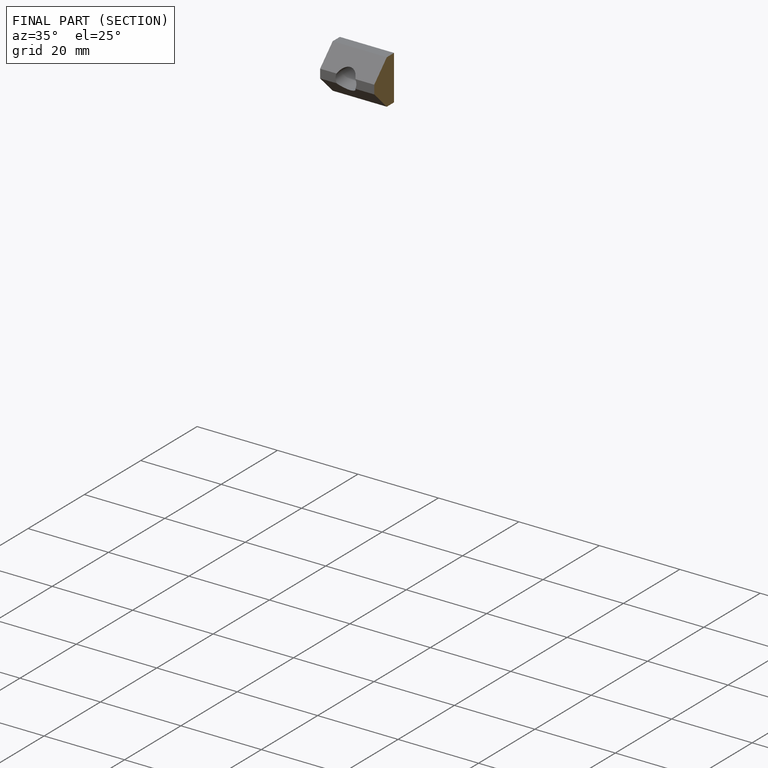
[diagram: finished part — half-section view (interior)]
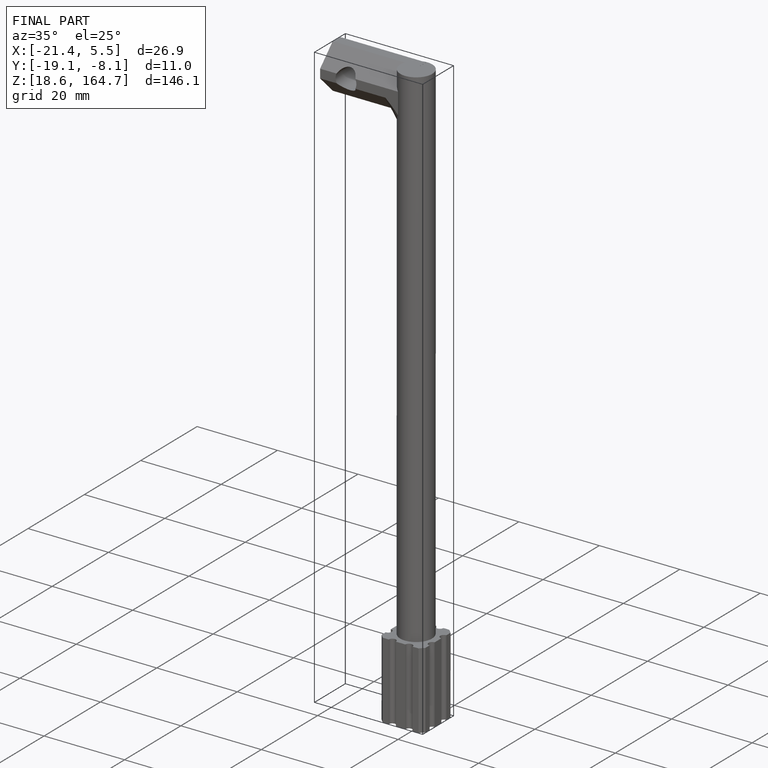
[diagram: finished part — iso view with bounding-box wireframe]
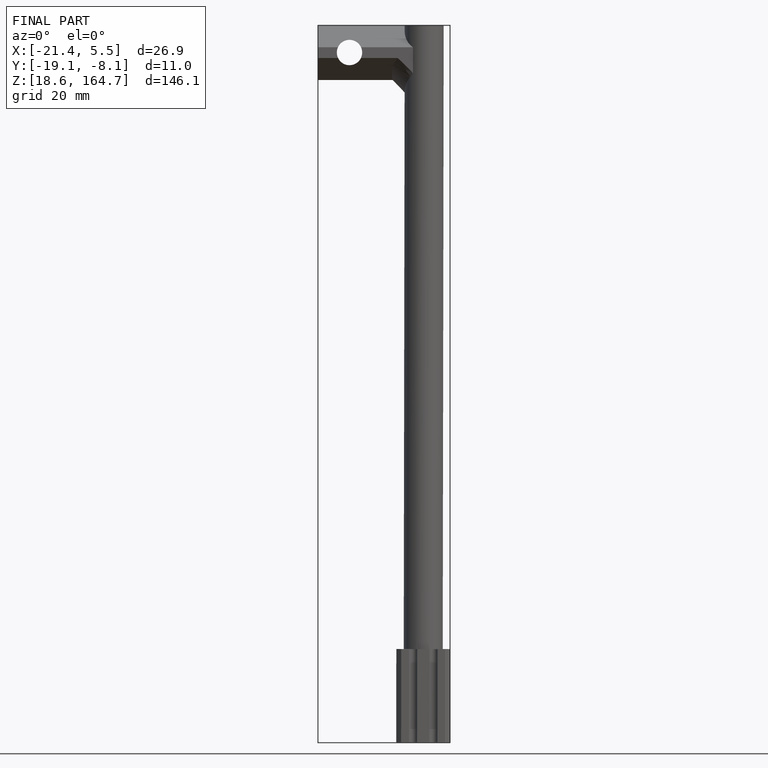
[diagram: finished part — front view with bounding-box wireframe]
